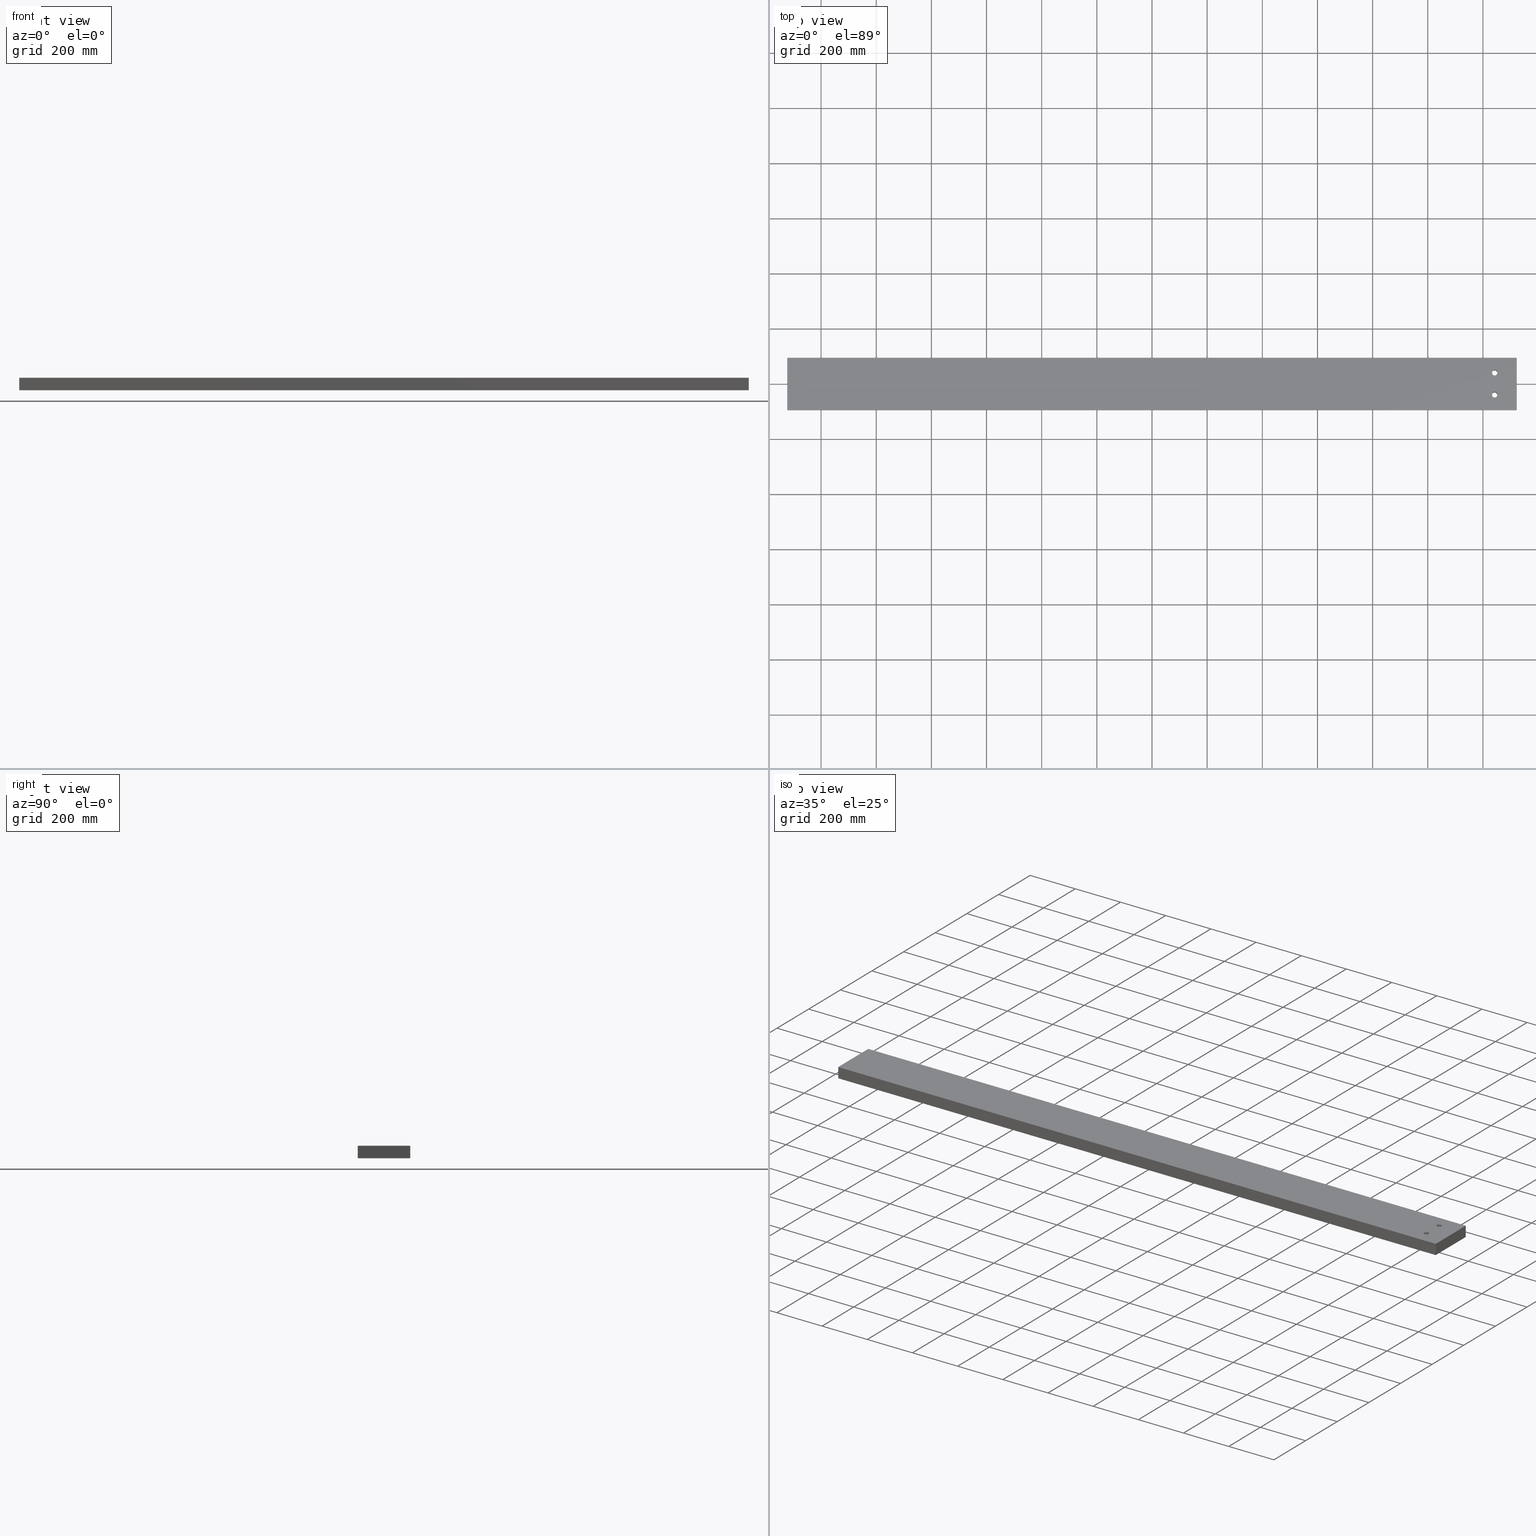
[diagram: canonical four-view strip — front | top / right | iso, engineering-drawing reading convention]
A machine part, canonical four-view strip (front | top / right | iso — engineering-drawing reading convention). The complete STEP part file that produces these views, byte-faithful:
ISO-10303-21;
HEADER;
FILE_DESCRIPTION (( 'STEP AP203' ),
    '1' );
FILE_NAME ('3982-56_REV_.step',
    '2026-01-19T05:58:32',
    ( '' ),
    ( '' ),
    'SwSTEP 2.0',
    'SolidWorks 2025',
    '' );
FILE_SCHEMA (( 'CONFIG_CONTROL_DESIGN' ));
ENDSEC;

DATA;
#1 = VERTEX_POINT ( 'NONE', #198 ) ;
#2 = APPROVAL_PERSON_ORGANIZATION ( #227, #262, #84 ) ;
#3 = DIRECTION ( 'NONE',  ( 1.000000000000000000, 0.000000000000000000, 0.000000000000000000 ) ) ;
#4 = EDGE_CURVE ( 'NONE', #11, #102, #144, .T. ) ;
#5 = DIRECTION ( 'NONE',  ( -0.000000000000000000, -0.000000000000000000, 1.000000000000000000 ) ) ;
#6 = DIRECTION ( 'NONE',  ( -0.000000000000000000, -1.000000000000000000, 3.816391647148975608E-15 ) ) ;
#7 = CIRCLE ( 'NONE', #248, 9.500000000000063949 ) ;
#8 = DIRECTION ( 'NONE',  ( 0.000000000000000000, 1.000000000000000000, -3.816391647148975608E-15 ) ) ;
#9 = ORIENTED_EDGE ( 'NONE', *, *, #292, .T. ) ;
#10 = DIRECTION ( 'NONE',  ( 0.000000000000000000, -1.000000000000000000, 3.816391647148975608E-15 ) ) ;
#11 = VERTEX_POINT ( 'NONE', #319 ) ;
#12 = LINE ( 'NONE', #162, #231 ) ;
#13 = EDGE_CURVE ( 'NONE', #205, #91, #151, .T. ) ;
#14 = DIRECTION ( 'NONE',  ( -1.168432953743421756E-30, 3.816391647148975608E-15, 1.000000000000000000 ) ) ;
#15 = AXIS2_PLACEMENT_3D ( 'NONE', #34, #153, #317 ) ;
#16 = ORIENTED_EDGE ( 'NONE', *, *, #164, .T. ) ;
#17 = CC_DESIGN_SECURITY_CLASSIFICATION ( #124, ( #183 ) ) ;
#18 = CARTESIAN_POINT ( 'NONE',  ( 1322.500000000000000, 0.000000000000000000, 0.000000000000000000 ) ) ;
#19 = CC_DESIGN_DATE_AND_TIME_ASSIGNMENT ( #31, #374, ( #228 ) ) ;
#20 = ORIENTED_EDGE ( 'NONE', *, *, #225, .F. ) ;
#21 = CARTESIAN_POINT ( 'NONE',  ( 1242.500000000000000, 40.00000000000008527, 22.49999999999999645 ) ) ;
#22 = EDGE_LOOP ( 'NONE', ( #16, #218, #79, #195 ) ) ;
#23 = PERSON_AND_ORGANIZATION_ROLE ( 'design_owner' ) ;
#24 = DIRECTION ( 'NONE',  ( -1.168432953743421756E-30, 3.816391647148975608E-15, 1.000000000000000000 ) ) ;
#25 = APPROVAL_PERSON_ORGANIZATION ( #350, #332, #26 ) ;
#26 = APPROVAL_ROLE ( '' ) ;
#27 = DIRECTION ( 'NONE',  ( 1.000000000000000000, 3.061616997868382648E-16, -0.000000000000000000 ) ) ;
#28 = PRODUCT_RELATED_PRODUCT_CATEGORY ( 'detail', '', ( #192 ) ) ;
#29 = APPROVAL_ROLE ( '' ) ;
#30 = ORIENTED_EDGE ( 'NONE', *, *, #206, .F. ) ;
#31 = DATE_AND_TIME ( #62, #152 ) ;
#32 = EDGE_CURVE ( 'NONE', #130, #163, #75, .T. ) ;
#33 = AXIS2_PLACEMENT_3D ( 'NONE', #123, #155, #236 ) ;
#34 = CARTESIAN_POINT ( 'NONE',  ( -1322.500000000000000, -8.097976959361871895E-13, 0.000000000000000000 ) ) ;
#35 = ORIENTED_EDGE ( 'NONE', *, *, #268, .F. ) ;
#36 = CARTESIAN_POINT ( 'NONE',  ( 1322.500000000000000, -94.99999999999960210, -22.49999999999965539 ) ) ;
#37 = ORIENTED_EDGE ( 'NONE', *, *, #13, .T. ) ;
#38 = MANIFOLD_SOLID_BREP ( 'M16 Clearance Hole1', #301 ) ;
#39 = LINE ( 'NONE', #182, #213 ) ;
#40 = CARTESIAN_POINT ( 'NONE',  ( -1322.500000000000000, -95.00000000000022737, 22.50000000000035527 ) ) ;
#41 = EDGE_CURVE ( 'NONE', #370, #82, #90, .T. ) ;
#42 = DIRECTION ( 'NONE',  ( -0.000000000000000000, -0.000000000000000000, 1.000000000000000000 ) ) ;
#43 = DIRECTION ( 'NONE',  ( 1.000000000000000000, 0.000000000000000000, 0.000000000000000000 ) ) ;
#44 = EDGE_CURVE ( 'NONE', #366, #196, #204, .T. ) ;
#45 = EDGE_LOOP ( 'NONE', ( #296, #55, #108, #216 ) ) ;
#46 = VECTOR ( 'NONE', #299, 1000.000000000000000 ) ;
#47 = CARTESIAN_POINT ( 'NONE',  ( 1322.500000000000000, -94.99999999999960210, -22.49999999999965539 ) ) ;
#48 = EDGE_CURVE ( 'NONE', #1, #77, #257, .T. ) ;
#49 = CARTESIAN_POINT ( 'NONE',  ( 1232.999999999999773, -39.99999999999991473, -22.49999999999986500 ) ) ;
#50 = ADVANCED_FACE ( 'NONE', ( #382 ), #259, .F. ) ;
#51 = CARTESIAN_POINT ( 'NONE',  ( -1322.500000000000000, -95.00000000000039790, -22.49999999999965539 ) ) ;
#52 = EDGE_LOOP ( 'NONE', ( #384, #64 ) ) ;
#53 = ORGANIZATION ( 'UNSPECIFIED', 'UNSPECIFIED', '' ) ;
#54 = PLANE ( 'NONE',  #89 ) ;
#55 = ORIENTED_EDGE ( 'NONE', *, *, #48, .F. ) ;
#56 = CALENDAR_DATE ( 2026, 19, 1 ) ;
#57 = DIRECTION ( 'NONE',  ( -0.000000000000000000, -0.000000000000000000, 1.000000000000000000 ) ) ;
#58 = SHAPE_DEFINITION_REPRESENTATION ( #278, #274 ) ;
#59 = CARTESIAN_POINT ( 'NONE',  ( 1242.500000000000000, -39.99999999999991473, 22.49999999999999645 ) ) ;
#60 = VECTOR ( 'NONE', #354, 1000.000000000000000 ) ;
#61 = VECTOR ( 'NONE', #252, 1000.000000000000000 ) ;
#62 = CALENDAR_DATE ( 2026, 19, 1 ) ;
#63 = CIRCLE ( 'NONE', #161, 9.500000000000063949 ) ;
#64 = ORIENTED_EDGE ( 'NONE', *, *, #140, .T. ) ;
#65 = CARTESIAN_POINT ( 'NONE',  ( 1242.500000000000000, -39.99999999999991473, 22.49999999999999645 ) ) ;
#66 = ORIENTED_EDGE ( 'NONE', *, *, #335, .T. ) ;
#67 = DIRECTION ( 'NONE',  ( -0.000000000000000000, -4.009138700035287069E-15, -1.000000000000000000 ) ) ;
#68 = AXIS2_PLACEMENT_3D ( 'NONE', #76, #194, #107 ) ;
#69 = CARTESIAN_POINT ( 'NONE',  ( 1242.500000000000000, -39.99999999999991473, -22.49999999999986500 ) ) ;
#70 = EDGE_CURVE ( 'NONE', #366, #285, #146, .T. ) ;
#71 = FACE_BOUND ( 'NONE', #125, .T. ) ;
#72 = EDGE_LOOP ( 'NONE', ( #232, #147, #283, #353 ) ) ;
#73 = MECHANICAL_CONTEXT ( 'NONE', #92, 'mechanical' ) ;
#74 = ORIENTED_EDGE ( 'NONE', *, *, #44, .F. ) ;
#75 = CIRCLE ( 'NONE', #336, 9.500000000000063949 ) ;
#76 = CARTESIAN_POINT ( 'NONE',  ( -1322.500000000000000, 94.99999999999960210, -22.50000000000038014 ) ) ;
#77 = VERTEX_POINT ( 'NONE', #380 ) ;
#78 = DIRECTION ( 'NONE',  ( 0.000000000000000000, 0.000000000000000000, 1.000000000000000000 ) ) ;
#79 = ORIENTED_EDGE ( 'NONE', *, *, #44, .T. ) ;
#80 =( NAMED_UNIT ( * ) PLANE_ANGLE_UNIT ( ) SI_UNIT ( $, .RADIAN. ) );
#81 = AXIS2_PLACEMENT_3D ( 'NONE', #208, #357, #43 ) ;
#82 = VERTEX_POINT ( 'NONE', #116 ) ;
#83 = ADVANCED_FACE ( 'NONE', ( #121 ), #234, .F. ) ;
#84 = APPROVAL_ROLE ( '' ) ;
#85 = ORIENTED_EDGE ( 'NONE', *, *, #225, .T. ) ;
#86 = PERSON_AND_ORGANIZATION_ROLE ( 'design_supplier' ) ;
#87 = DATE_AND_TIME ( #120, #136 ) ;
#88 = DIRECTION ( 'NONE',  ( -0.000000000000000000, -0.000000000000000000, 1.000000000000000000 ) ) ;
#89 = AXIS2_PLACEMENT_3D ( 'NONE', #51, #14, #10 ) ;
#90 = LINE ( 'NONE', #201, #135 ) ;
#91 = VERTEX_POINT ( 'NONE', #235 ) ;
#92 = APPLICATION_CONTEXT ( 'configuration controlled 3d designs of mechanical parts and assemblies' ) ;
#93 = CARTESIAN_POINT ( 'NONE',  ( 1242.500000000000000, 40.00000000000008527, 22.49999999999999645 ) ) ;
#94 = EDGE_LOOP ( 'NONE', ( #334, #238, #341, #322 ) ) ;
#95 = FACE_OUTER_BOUND ( 'NONE', #94, .T. ) ;
#96 = FACE_BOUND ( 'NONE', #221, .T. ) ;
#97 = ADVANCED_FACE ( 'NONE', ( #355 ), #176, .T. ) ;
#98 = LINE ( 'NONE', #185, #242 ) ;
#99 = AXIS2_PLACEMENT_3D ( 'NONE', #239, #127, #8 ) ;
#100 =( GEOMETRIC_REPRESENTATION_CONTEXT ( 3 ) GLOBAL_UNCERTAINTY_ASSIGNED_CONTEXT ( ( #287 ) ) GLOBAL_UNIT_ASSIGNED_CONTEXT ( ( #340, #80, #168 ) ) REPRESENTATION_CONTEXT ( 'NONE', 'WORKASPACE' ) );
#101 = DIRECTION ( 'NONE',  ( 1.000000000000000000, 3.061616997868382648E-16, -0.000000000000000000 ) ) ;
#102 = VERTEX_POINT ( 'NONE', #263 ) ;
#103 = CARTESIAN_POINT ( 'NONE',  ( 0.000000000000000000, 0.000000000000000000, 0.000000000000000000 ) ) ;
#104 = EDGE_LOOP ( 'NONE', ( #20, #35, #66, #381 ) ) ;
#105 = ORIENTED_EDGE ( 'NONE', *, *, #4, .F. ) ;
#106 = CC_DESIGN_APPROVAL ( #262, ( #124 ) ) ;
#107 = DIRECTION ( 'NONE',  ( 0.000000000000000000, -4.009138700035287069E-15, -1.000000000000000000 ) ) ;
#108 = ORIENTED_EDGE ( 'NONE', *, *, #156, .F. ) ;
#109 = FACE_OUTER_BOUND ( 'NONE', #324, .T. ) ;
#110 = CALENDAR_DATE ( 2026, 19, 1 ) ;
#111 = VECTOR ( 'NONE', #226, 1000.000000000000000 ) ;
#112 = DATE_AND_TIME ( #56, #349 ) ;
#113 = COORDINATED_UNIVERSAL_TIME_OFFSET ( 10, 0, .AHEAD. ) ;
#114 = CARTESIAN_POINT ( 'NONE',  ( -1322.500000000000000, 94.99999999999960210, -22.50000000000038014 ) ) ;
#115 = APPROVAL_DATE_TIME ( #112, #352 ) ;
#116 = CARTESIAN_POINT ( 'NONE',  ( 1232.999999999999773, 40.00000000000008527, 22.49999999999999645 ) ) ;
#117 = AXIS2_PLACEMENT_3D ( 'NONE', #122, #24, #210 ) ;
#118 = ORIENTED_EDGE ( 'NONE', *, *, #316, .F. ) ;
#119 = DESIGN_CONTEXT ( 'detailed design', #345, 'design' ) ;
#120 = CALENDAR_DATE ( 2026, 19, 1 ) ;
#121 = FACE_OUTER_BOUND ( 'NONE', #358, .T. ) ;
#122 = CARTESIAN_POINT ( 'NONE',  ( 1242.500000000000000, 40.00000000000008527, -22.50000000000017053 ) ) ;
#123 = CARTESIAN_POINT ( 'NONE',  ( 1242.500000000000000, 40.00000000000008527, -22.50000000000017053 ) ) ;
#124 = SECURITY_CLASSIFICATION ( '', '', #199 ) ;
#125 = EDGE_LOOP ( 'NONE', ( #356, #276 ) ) ;
#126 = CARTESIAN_POINT ( 'NONE',  ( 1232.999999999999773, -39.99999999999991473, 22.49999999999999645 ) ) ;
#127 = DIRECTION ( 'NONE',  ( 1.168432953743421756E-30, -3.816391647148975608E-15, -1.000000000000000000 ) ) ;
#128 = EDGE_CURVE ( 'NONE', #205, #370, #230, .T. ) ;
#129 = LINE ( 'NONE', #157, #46 ) ;
#130 = VERTEX_POINT ( 'NONE', #359 ) ;
#131 = CARTESIAN_POINT ( 'NONE',  ( -1322.500000000000000, -95.00000000000039790, -22.49999999999965539 ) ) ;
#132 = EDGE_CURVE ( 'NONE', #163, #130, #330, .T. ) ;
#133 = DIRECTION ( 'NONE',  ( -1.000000000000000000, 0.000000000000000000, 0.000000000000000000 ) ) ;
#134 = ORIENTED_EDGE ( 'NONE', *, *, #298, .T. ) ;
#135 = VECTOR ( 'NONE', #172, 1000.000000000000000 ) ;
#136 = LOCAL_TIME ( 16, 58, 32.00000000000000000, #233 ) ;
#137 = EDGE_LOOP ( 'NONE', ( #9, #105, #180, #378 ) ) ;
#138 = DIRECTION ( 'NONE',  ( -0.000000000000000000, -0.000000000000000000, 1.000000000000000000 ) ) ;
#139 = EDGE_CURVE ( 'NONE', #102, #285, #39, .T. ) ;
#140 = EDGE_CURVE ( 'NONE', #370, #205, #272, .T. ) ;
#141 = DATE_TIME_ROLE ( 'classification_date' ) ;
#142 = CC_DESIGN_APPROVAL ( #332, ( #228 ) ) ;
#143 = APPROVAL_STATUS ( 'not_yet_approved' ) ;
#144 = LINE ( 'NONE', #114, #111 ) ;
#145 = COORDINATED_UNIVERSAL_TIME_OFFSET ( 10, 0, .AHEAD. ) ;
#146 = LINE ( 'NONE', #323, #60 ) ;
#147 = ORIENTED_EDGE ( 'NONE', *, *, #286, .F. ) ;
#148 = PERSON_AND_ORGANIZATION ( #159, #53 ) ;
#149 = ADVANCED_FACE ( 'NONE', ( #71, #96, #241 ), #264, .F. ) ;
#150 = VECTOR ( 'NONE', #290, 1000.000000000000000 ) ;
#151 = LINE ( 'NONE', #351, #223 ) ;
#152 = LOCAL_TIME ( 16, 58, 32.00000000000000000, #379 ) ;
#153 = DIRECTION ( 'NONE',  ( -1.000000000000000000, 0.000000000000000000, 0.000000000000000000 ) ) ;
#154 = ADVANCED_FACE ( 'NONE', ( #95 ), #186, .F. ) ;
#155 = DIRECTION ( 'NONE',  ( -1.168432953743421756E-30, 3.816391647148975608E-15, 1.000000000000000000 ) ) ;
#156 = EDGE_CURVE ( 'NONE', #196, #1, #98, .T. ) ;
#157 = CARTESIAN_POINT ( 'NONE',  ( 1232.999999999999773, -39.99999999999991473, 22.49999999999999645 ) ) ;
#158 = DIRECTION ( 'NONE',  ( -1.168432953743421756E-30, 3.816391647148975608E-15, 1.000000000000000000 ) ) ;
#159 = PERSON ( 'UNSPECIFIED', 'UNSPECIFIED', 'UNSPECIFIED', ('UNSPECIFIED'), ('UNSPECIFIED'), ('UNSPECIFIED') ) ;
#160 = CARTESIAN_POINT ( 'NONE',  ( 1252.000000000000000, -39.99999999999991473, -22.49999999999986500 ) ) ;
#161 = AXIS2_PLACEMENT_3D ( 'NONE', #211, #42, #302 ) ;
#162 = CARTESIAN_POINT ( 'NONE',  ( 1322.500000000000000, 95.00000000000039790, -22.50000000000038014 ) ) ;
#163 = VERTEX_POINT ( 'NONE', #126 ) ;
#164 = EDGE_CURVE ( 'NONE', #1, #11, #304, .T. ) ;
#165 = DIRECTION ( 'NONE',  ( 0.000000000000000000, 1.000000000000000000, -3.816391647148975608E-15 ) ) ;
#166 = FACE_BOUND ( 'NONE', #327, .T. ) ;
#167 = ORIENTED_EDGE ( 'NONE', *, *, #41, .F. ) ;
#168 =( NAMED_UNIT ( * ) SI_UNIT ( $, .STERADIAN. ) SOLID_ANGLE_UNIT ( ) );
#169 = PERSON_AND_ORGANIZATION_ROLE ( 'creator' ) ;
#170 = PERSON_AND_ORGANIZATION_ROLE ( 'creator' ) ;
#171 = AXIS2_PLACEMENT_3D ( 'NONE', #362, #367, #342 ) ;
#172 = DIRECTION ( 'NONE',  ( -0.000000000000000000, -0.000000000000000000, 1.000000000000000000 ) ) ;
#173 = CARTESIAN_POINT ( 'NONE',  ( -1322.500000000000000, 94.99999999999977263, 22.49999999999963052 ) ) ;
#174 = CARTESIAN_POINT ( 'NONE',  ( 1242.500000000000000, -39.99999999999991473, 22.49999999999999645 ) ) ;
#175 = ORIENTED_EDGE ( 'NONE', *, *, #329, .T. ) ;
#176 = PLANE ( 'NONE',  #15 ) ;
#177 = ORIENTED_EDGE ( 'NONE', *, *, #268, .T. ) ;
#178 = DIRECTION ( 'NONE',  ( -0.000000000000000000, -0.000000000000000000, 1.000000000000000000 ) ) ;
#179 = CC_DESIGN_PERSON_AND_ORGANIZATION_ASSIGNMENT ( #203, #23, ( #192 ) ) ;
#180 = ORIENTED_EDGE ( 'NONE', *, *, #164, .F. ) ;
#181 = DIRECTION ( 'NONE',  ( 0.000000000000000000, -1.000000000000000000, 3.652049423109042780E-15 ) ) ;
#182 = CARTESIAN_POINT ( 'NONE',  ( 1322.500000000000000, -94.99999999999960210, -22.49999999999965539 ) ) ;
#183 = PRODUCT_DEFINITION_FORMATION_WITH_SPECIFIED_SOURCE ( 'ANY', '', #192, .NOT_KNOWN. ) ;
#184 = EDGE_CURVE ( 'NONE', #82, #91, #63, .T. ) ;
#185 = CARTESIAN_POINT ( 'NONE',  ( -1322.500000000000000, -95.00000000000022737, 22.50000000000035527 ) ) ;
#186 = CYLINDRICAL_SURFACE ( 'NONE', #81, 9.500000000000063949 ) ;
#187 = DIRECTION ( 'NONE',  ( 1.000000000000000000, 0.000000000000000000, 0.000000000000000000 ) ) ;
#188 = VERTEX_POINT ( 'NONE', #160 ) ;
#189 = VECTOR ( 'NONE', #246, 1000.000000000000000 ) ;
#190 = LINE ( 'NONE', #47, #61 ) ;
#191 = CC_DESIGN_DATE_AND_TIME_ASSIGNMENT ( #344, #141, ( #124 ) ) ;
#192 = PRODUCT ( '3982-56_REV_', '3982-56_REV_', '', ( #73 ) ) ;
#193 = DIRECTION ( 'NONE',  ( 0.000000000000000000, 0.000000000000000000, 1.000000000000000000 ) ) ;
#194 = DIRECTION ( 'NONE',  ( 3.061616997868382648E-16, -1.000000000000000000, 4.009138700035287069E-15 ) ) ;
#195 = ORIENTED_EDGE ( 'NONE', *, *, #156, .T. ) ;
#196 = VERTEX_POINT ( 'NONE', #326 ) ;
#197 = APPROVAL_STATUS ( 'not_yet_approved' ) ;
#198 = CARTESIAN_POINT ( 'NONE',  ( -1322.500000000000000, 94.99999999999977263, 22.49999999999963052 ) ) ;
#199 = SECURITY_CLASSIFICATION_LEVEL ( 'unclassified' ) ;
#200 = VECTOR ( 'NONE', #101, 1000.000000000000000 ) ;
#201 = CARTESIAN_POINT ( 'NONE',  ( 1232.999999999999773, 40.00000000000008527, 22.49999999999999645 ) ) ;
#202 = CC_DESIGN_PERSON_AND_ORGANIZATION_ASSIGNMENT ( #318, #229, ( #124 ) ) ;
#203 = PERSON_AND_ORGANIZATION ( #159, #53 ) ;
#204 = LINE ( 'NONE', #321, #150 ) ;
#205 = VERTEX_POINT ( 'NONE', #271 ) ;
#206 = EDGE_CURVE ( 'NONE', #196, #346, #266, .T. ) ;
#207 = DIRECTION ( 'NONE',  ( 1.000000000000000000, 0.000000000000000000, 0.000000000000000000 ) ) ;
#208 = CARTESIAN_POINT ( 'NONE',  ( 1242.500000000000000, 40.00000000000008527, 22.49999999999999645 ) ) ;
#209 = AXIS2_PLACEMENT_3D ( 'NONE', #103, #78, #312 ) ;
#210 = DIRECTION ( 'NONE',  ( 0.000000000000000000, -1.000000000000000000, 3.652049423109042780E-15 ) ) ;
#211 = CARTESIAN_POINT ( 'NONE',  ( 1242.500000000000000, 40.00000000000008527, 22.49999999999999645 ) ) ;
#212 = FACE_OUTER_BOUND ( 'NONE', #104, .T. ) ;
#213 = VECTOR ( 'NONE', #6, 1000.000000000000000 ) ;
#214 = CC_DESIGN_PERSON_AND_ORGANIZATION_ASSIGNMENT ( #288, #86, ( #183 ) ) ;
#215 = DIRECTION ( 'NONE',  ( -1.168432953743421756E-30, 3.816391647148975608E-15, 1.000000000000000000 ) ) ;
#216 = ORIENTED_EDGE ( 'NONE', *, *, #206, .T. ) ;
#217 = FACE_OUTER_BOUND ( 'NONE', #253, .T. ) ;
#218 = ORIENTED_EDGE ( 'NONE', *, *, #316, .T. ) ;
#219 = CARTESIAN_POINT ( 'NONE',  ( 1322.500000000000000, -94.99999999999941735, 22.50000000000035527 ) ) ;
#220 = ORIENTED_EDGE ( 'NONE', *, *, #132, .F. ) ;
#221 = EDGE_LOOP ( 'NONE', ( #280, #220 ) ) ;
#222 = LINE ( 'NONE', #279, #189 ) ;
#223 = VECTOR ( 'NONE', #88, 1000.000000000000000 ) ;
#224 = PERSON_AND_ORGANIZATION ( #159, #53 ) ;
#225 = EDGE_CURVE ( 'NONE', #373, #163, #129, .T. ) ;
#226 = DIRECTION ( 'NONE',  ( 1.000000000000000000, 3.061616997868382648E-16, -0.000000000000000000 ) ) ;
#227 = PERSON_AND_ORGANIZATION ( #159, #53 ) ;
#228 = PRODUCT_DEFINITION ( 'UNKNOWN', '', #183, #119 ) ;
#229 = PERSON_AND_ORGANIZATION_ROLE ( 'classification_officer' ) ;
#230 = CIRCLE ( 'NONE', #117, 9.500000000000063949 ) ;
#231 = VECTOR ( 'NONE', #308, 1000.000000000000000 ) ;
#232 = ORIENTED_EDGE ( 'NONE', *, *, #292, .F. ) ;
#233 = COORDINATED_UNIVERSAL_TIME_OFFSET ( 10, 0, .AHEAD. ) ;
#234 = CYLINDRICAL_SURFACE ( 'NONE', #371, 9.500000000000063949 ) ;
#235 = CARTESIAN_POINT ( 'NONE',  ( 1252.000000000000000, 40.00000000000008527, 22.49999999999999645 ) ) ;
#236 = DIRECTION ( 'NONE',  ( 0.000000000000000000, -1.000000000000000000, 3.652049423109042780E-15 ) ) ;
#237 = CC_DESIGN_APPROVAL ( #352, ( #183 ) ) ;
#238 = ORIENTED_EDGE ( 'NONE', *, *, #41, .T. ) ;
#239 = CARTESIAN_POINT ( 'NONE',  ( -1322.500000000000000, -95.00000000000022737, 22.50000000000035527 ) ) ;
#240 = EDGE_CURVE ( 'NONE', #373, #188, #7, .T. ) ;
#241 = FACE_OUTER_BOUND ( 'NONE', #45, .T. ) ;
#242 = VECTOR ( 'NONE', #306, 1000.000000000000000 ) ;
#243 = AXIS2_PLACEMENT_3D ( 'NONE', #69, #158, #297 ) ;
#244 = CYLINDRICAL_SURFACE ( 'NONE', #365, 9.500000000000063949 ) ;
#245 = ORIENTED_EDGE ( 'NONE', *, *, #139, .T. ) ;
#246 = DIRECTION ( 'NONE',  ( -0.000000000000000000, -1.000000000000000000, 3.816391647148975608E-15 ) ) ;
#247 = FACE_OUTER_BOUND ( 'NONE', #137, .T. ) ;
#248 = AXIS2_PLACEMENT_3D ( 'NONE', #269, #215, #181 ) ;
#249 = FACE_BOUND ( 'NONE', #52, .T. ) ;
#250 = ADVANCED_FACE ( 'NONE', ( #212 ), #244, .F. ) ;
#251 = ORIENTED_EDGE ( 'NONE', *, *, #4, .T. ) ;
#252 = DIRECTION ( 'NONE',  ( 0.000000000000000000, 4.009138700035287069E-15, 1.000000000000000000 ) ) ;
#253 = EDGE_LOOP ( 'NONE', ( #245, #361, #118, #251 ) ) ;
#254 = APPROVAL_PERSON_ORGANIZATION ( #148, #352, #29 ) ;
#255 = APPROVAL_DATE_TIME ( #87, #262 ) ;
#256 = PERSON_AND_ORGANIZATION ( #159, #53 ) ;
#257 = LINE ( 'NONE', #173, #325 ) ;
#258 = DATE_AND_TIME ( #110, #314 ) ;
#259 = CYLINDRICAL_SURFACE ( 'NONE', #265, 9.500000000000063949 ) ;
#260 = ORIENTED_EDGE ( 'NONE', *, *, #335, .F. ) ;
#261 = DIRECTION ( 'NONE',  ( 1.000000000000000000, 0.000000000000000000, 0.000000000000000000 ) ) ;
#262 = APPROVAL ( #143, 'UNSPECIFIED' ) ;
#263 = CARTESIAN_POINT ( 'NONE',  ( 1322.500000000000000, 95.00000000000039790, -22.50000000000038014 ) ) ;
#264 = PLANE ( 'NONE',  #99 ) ;
#265 = AXIS2_PLACEMENT_3D ( 'NONE', #174, #291, #261 ) ;
#266 = LINE ( 'NONE', #40, #200 ) ;
#267 = VECTOR ( 'NONE', #165, 1000.000000000000000 ) ;
#268 = EDGE_CURVE ( 'NONE', #188, #373, #372, .T. ) ;
#269 = CARTESIAN_POINT ( 'NONE',  ( 1242.500000000000000, -39.99999999999991473, -22.49999999999986500 ) ) ;
#270 = CARTESIAN_POINT ( 'NONE',  ( 1242.500000000000000, -39.99999999999991473, 22.49999999999999645 ) ) ;
#271 = CARTESIAN_POINT ( 'NONE',  ( 1252.000000000000000, 40.00000000000008527, -22.50000000000017053 ) ) ;
#272 = CIRCLE ( 'NONE', #33, 9.500000000000063949 ) ;
#273 = ORIENTED_EDGE ( 'NONE', *, *, #132, .T. ) ;
#274 = ADVANCED_BREP_SHAPE_REPRESENTATION ( '3982-56_REV_', ( #38, #209 ), #100 ) ;
#275 = PLANE ( 'NONE',  #171 ) ;
#276 = ORIENTED_EDGE ( 'NONE', *, *, #184, .F. ) ;
#277 = PLANE ( 'NONE',  #303 ) ;
#278 = PRODUCT_DEFINITION_SHAPE ( 'NONE', 'NONE',  #228 ) ;
#279 = CARTESIAN_POINT ( 'NONE',  ( -1322.500000000000000, -95.00000000000039790, -22.49999999999965539 ) ) ;
#280 = ORIENTED_EDGE ( 'NONE', *, *, #32, .F. ) ;
#281 = AXIS2_PLACEMENT_3D ( 'NONE', #21, #138, #187 ) ;
#282 = FACE_OUTER_BOUND ( 'NONE', #72, .T. ) ;
#283 = ORIENTED_EDGE ( 'NONE', *, *, #329, .F. ) ;
#284 = LINE ( 'NONE', #333, #320 ) ;
#285 = VERTEX_POINT ( 'NONE', #36 ) ;
#286 = EDGE_CURVE ( 'NONE', #346, #77, #385, .T. ) ;
#287 = UNCERTAINTY_MEASURE_WITH_UNIT (LENGTH_MEASURE( 1.000000000000000082E-05 ), #340, 'distance_accuracy_value', 'NONE');
#288 = PERSON_AND_ORGANIZATION ( #159, #53 ) ;
#289 = COORDINATED_UNIVERSAL_TIME_OFFSET ( 10, 0, .AHEAD. ) ;
#290 = DIRECTION ( 'NONE',  ( 0.000000000000000000, 4.009138700035287069E-15, 1.000000000000000000 ) ) ;
#291 = DIRECTION ( 'NONE',  ( -0.000000000000000000, -0.000000000000000000, 1.000000000000000000 ) ) ;
#292 = EDGE_CURVE ( 'NONE', #77, #102, #12, .T. ) ;
#293 = DIRECTION ( 'NONE',  ( 1.000000000000000000, 0.000000000000000000, 0.000000000000000000 ) ) ;
#294 = VECTOR ( 'NONE', #67, 1000.000000000000000 ) ;
#295 = APPLICATION_PROTOCOL_DEFINITION ( 'international standard', 'config_control_design', 1994, #345 ) ;
#296 = ORIENTED_EDGE ( 'NONE', *, *, #286, .T. ) ;
#297 = DIRECTION ( 'NONE',  ( 0.000000000000000000, -1.000000000000000000, 3.652049423109042780E-15 ) ) ;
#298 = EDGE_CURVE ( 'NONE', #91, #82, #343, .T. ) ;
#299 = DIRECTION ( 'NONE',  ( -0.000000000000000000, -0.000000000000000000, 1.000000000000000000 ) ) ;
#300 = ADVANCED_FACE ( 'NONE', ( #249, #166, #217 ), #54, .F. ) ;
#301 = CLOSED_SHELL ( 'NONE', ( #154, #50, #305, #300, #369, #149, #97, #311, #250, #83 ) ) ;
#302 = DIRECTION ( 'NONE',  ( 1.000000000000000000, 0.000000000000000000, 0.000000000000000000 ) ) ;
#303 = AXIS2_PLACEMENT_3D ( 'NONE', #18, #133, #193 ) ;
#304 = LINE ( 'NONE', #328, #294 ) ;
#305 = ADVANCED_FACE ( 'NONE', ( #247 ), #309, .F. ) ;
#306 = DIRECTION ( 'NONE',  ( 0.000000000000000000, 1.000000000000000000, -3.816391647148975608E-15 ) ) ;
#307 = CARTESIAN_POINT ( 'NONE',  ( 1322.500000000000000, -94.99999999999941735, 22.50000000000035527 ) ) ;
#308 = DIRECTION ( 'NONE',  ( -0.000000000000000000, -4.009138700035287069E-15, -1.000000000000000000 ) ) ;
#309 = PLANE ( 'NONE',  #68 ) ;
#310 = EDGE_LOOP ( 'NONE', ( #337, #85, #273, #260 ) ) ;
#311 = ADVANCED_FACE ( 'NONE', ( #282 ), #277, .F. ) ;
#312 = DIRECTION ( 'NONE',  ( 1.000000000000000000, 0.000000000000000000, 0.000000000000000000 ) ) ;
#313 = ORIENTED_EDGE ( 'NONE', *, *, #70, .T. ) ;
#314 = LOCAL_TIME ( 16, 58, 32.00000000000000000, #145 ) ;
#315 = APPROVAL_STATUS ( 'not_yet_approved' ) ;
#316 = EDGE_CURVE ( 'NONE', #11, #366, #222, .T. ) ;
#317 = DIRECTION ( 'NONE',  ( 0.000000000000000000, 0.000000000000000000, 1.000000000000000000 ) ) ;
#318 = PERSON_AND_ORGANIZATION ( #159, #53 ) ;
#319 = CARTESIAN_POINT ( 'NONE',  ( -1322.500000000000000, 94.99999999999960210, -22.50000000000038014 ) ) ;
#320 = VECTOR ( 'NONE', #363, 1000.000000000000000 ) ;
#321 = CARTESIAN_POINT ( 'NONE',  ( -1322.500000000000000, -95.00000000000039790, -22.49999999999965539 ) ) ;
#322 = ORIENTED_EDGE ( 'NONE', *, *, #13, .F. ) ;
#323 = CARTESIAN_POINT ( 'NONE',  ( -1322.500000000000000, -95.00000000000039790, -22.49999999999965539 ) ) ;
#324 = EDGE_LOOP ( 'NONE', ( #175, #30, #74, #313 ) ) ;
#325 = VECTOR ( 'NONE', #27, 1000.000000000000000 ) ;
#326 = CARTESIAN_POINT ( 'NONE',  ( -1322.500000000000000, -95.00000000000022737, 22.50000000000035527 ) ) ;
#327 = EDGE_LOOP ( 'NONE', ( #177, #368 ) ) ;
#328 = CARTESIAN_POINT ( 'NONE',  ( -1322.500000000000000, 94.99999999999960210, -22.50000000000038014 ) ) ;
#329 = EDGE_CURVE ( 'NONE', #285, #346, #190, .T. ) ;
#330 = CIRCLE ( 'NONE', #377, 9.500000000000063949 ) ;
#331 = DIRECTION ( 'NONE',  ( 1.000000000000000000, 0.000000000000000000, 0.000000000000000000 ) ) ;
#332 = APPROVAL ( #315, 'UNSPECIFIED' ) ;
#333 = CARTESIAN_POINT ( 'NONE',  ( 1252.000000000000000, -39.99999999999991473, 22.49999999999999645 ) ) ;
#334 = ORIENTED_EDGE ( 'NONE', *, *, #140, .F. ) ;
#335 = EDGE_CURVE ( 'NONE', #188, #130, #284, .T. ) ;
#336 = AXIS2_PLACEMENT_3D ( 'NONE', #59, #348, #293 ) ;
#337 = ORIENTED_EDGE ( 'NONE', *, *, #240, .F. ) ;
#338 = LOCAL_TIME ( 16, 58, 32.00000000000000000, #289 ) ;
#339 = CARTESIAN_POINT ( 'NONE',  ( 1232.999999999999773, 40.00000000000008527, -22.50000000000017053 ) ) ;
#340 =( LENGTH_UNIT ( ) NAMED_UNIT ( * ) SI_UNIT ( .MILLI., .METRE. ) );
#341 = ORIENTED_EDGE ( 'NONE', *, *, #184, .T. ) ;
#342 = DIRECTION ( 'NONE',  ( 0.000000000000000000, 4.009138700035287069E-15, 1.000000000000000000 ) ) ;
#343 = CIRCLE ( 'NONE', #281, 9.500000000000063949 ) ;
#344 = DATE_AND_TIME ( #347, #338 ) ;
#345 = APPLICATION_CONTEXT ( 'configuration controlled 3d designs of mechanical parts and assemblies' ) ;
#346 = VERTEX_POINT ( 'NONE', #219 ) ;
#347 = CALENDAR_DATE ( 2026, 19, 1 ) ;
#348 = DIRECTION ( 'NONE',  ( -0.000000000000000000, -0.000000000000000000, 1.000000000000000000 ) ) ;
#349 = LOCAL_TIME ( 16, 58, 32.00000000000000000, #113 ) ;
#350 = PERSON_AND_ORGANIZATION ( #159, #53 ) ;
#351 = CARTESIAN_POINT ( 'NONE',  ( 1252.000000000000000, 40.00000000000008527, 22.49999999999999645 ) ) ;
#352 = APPROVAL ( #197, 'UNSPECIFIED' ) ;
#353 = ORIENTED_EDGE ( 'NONE', *, *, #139, .F. ) ;
#354 = DIRECTION ( 'NONE',  ( 1.000000000000000000, 3.061616997868382648E-16, -0.000000000000000000 ) ) ;
#355 = FACE_OUTER_BOUND ( 'NONE', #22, .T. ) ;
#356 = ORIENTED_EDGE ( 'NONE', *, *, #298, .F. ) ;
#357 = DIRECTION ( 'NONE',  ( -0.000000000000000000, -0.000000000000000000, 1.000000000000000000 ) ) ;
#358 = EDGE_LOOP ( 'NONE', ( #167, #364, #37, #134 ) ) ;
#359 = CARTESIAN_POINT ( 'NONE',  ( 1252.000000000000000, -39.99999999999991473, 22.49999999999999645 ) ) ;
#360 = APPLICATION_PROTOCOL_DEFINITION ( 'international standard', 'config_control_design', 1994, #92 ) ;
#361 = ORIENTED_EDGE ( 'NONE', *, *, #70, .F. ) ;
#362 = CARTESIAN_POINT ( 'NONE',  ( -1322.500000000000000, -95.00000000000039790, -22.49999999999965539 ) ) ;
#363 = DIRECTION ( 'NONE',  ( -0.000000000000000000, -0.000000000000000000, 1.000000000000000000 ) ) ;
#364 = ORIENTED_EDGE ( 'NONE', *, *, #128, .F. ) ;
#365 = AXIS2_PLACEMENT_3D ( 'NONE', #65, #178, #331 ) ;
#366 = VERTEX_POINT ( 'NONE', #131 ) ;
#367 = DIRECTION ( 'NONE',  ( -3.061616997868382648E-16, 1.000000000000000000, -4.009138700035287069E-15 ) ) ;
#368 = ORIENTED_EDGE ( 'NONE', *, *, #240, .T. ) ;
#369 = ADVANCED_FACE ( 'NONE', ( #109 ), #275, .F. ) ;
#370 = VERTEX_POINT ( 'NONE', #339 ) ;
#371 = AXIS2_PLACEMENT_3D ( 'NONE', #93, #57, #207 ) ;
#372 = CIRCLE ( 'NONE', #243, 9.500000000000063949 ) ;
#373 = VERTEX_POINT ( 'NONE', #49 ) ;
#374 = DATE_TIME_ROLE ( 'creation_date' ) ;
#375 = APPROVAL_DATE_TIME ( #258, #332 ) ;
#376 = CC_DESIGN_PERSON_AND_ORGANIZATION_ASSIGNMENT ( #256, #170, ( #228 ) ) ;
#377 = AXIS2_PLACEMENT_3D ( 'NONE', #270, #5, #3 ) ;
#378 = ORIENTED_EDGE ( 'NONE', *, *, #48, .T. ) ;
#379 = COORDINATED_UNIVERSAL_TIME_OFFSET ( 10, 0, .AHEAD. ) ;
#380 = CARTESIAN_POINT ( 'NONE',  ( 1322.500000000000000, 95.00000000000058265, 22.49999999999963052 ) ) ;
#381 = ORIENTED_EDGE ( 'NONE', *, *, #32, .T. ) ;
#382 = FACE_OUTER_BOUND ( 'NONE', #310, .T. ) ;
#383 = CC_DESIGN_PERSON_AND_ORGANIZATION_ASSIGNMENT ( #224, #169, ( #183 ) ) ;
#384 = ORIENTED_EDGE ( 'NONE', *, *, #128, .T. ) ;
#385 = LINE ( 'NONE', #307, #267 ) ;
ENDSEC;
END-ISO-10303-21;
